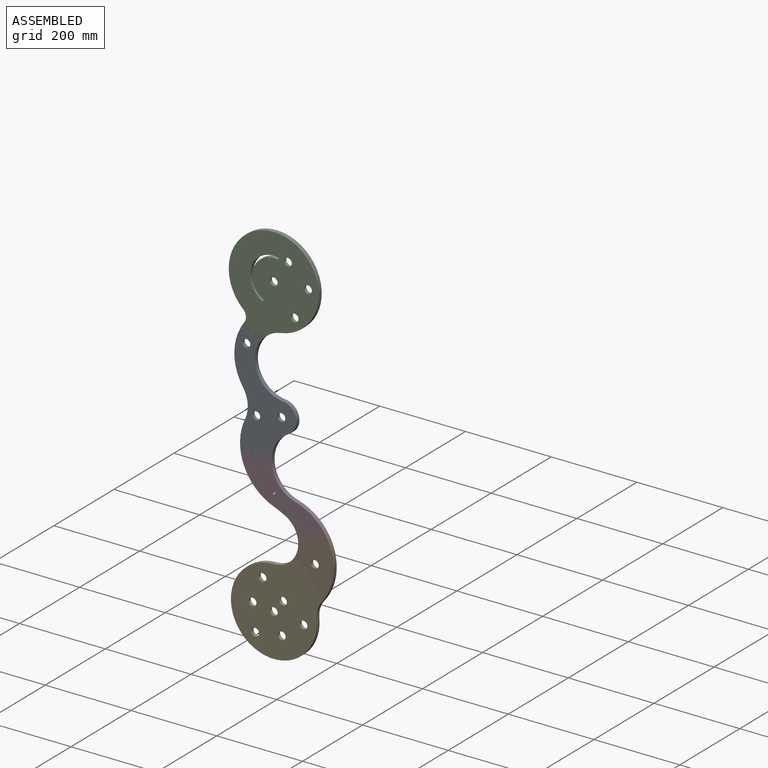
[diagram: assembled view]
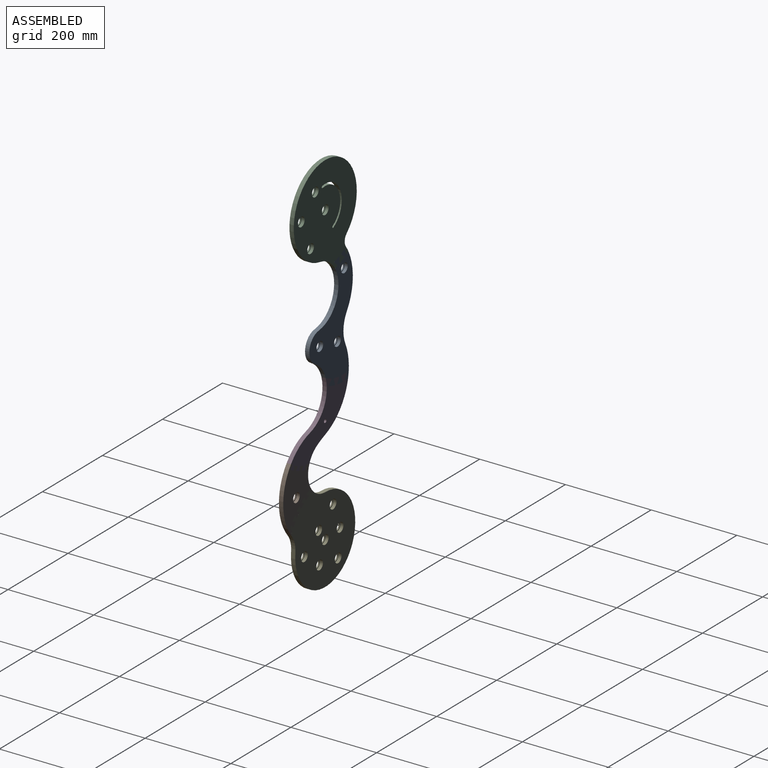
[diagram: assembled view, second angle]
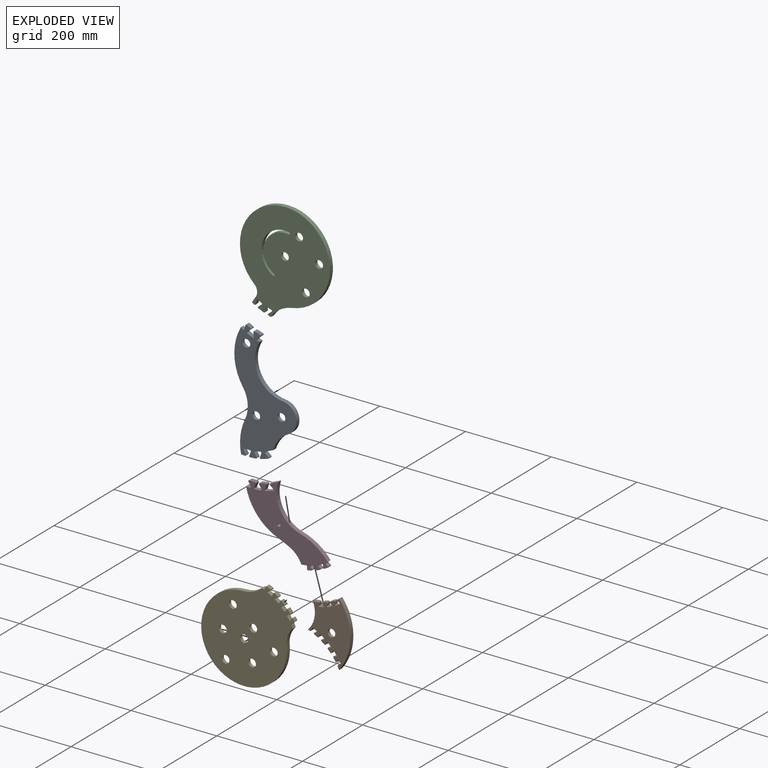
[diagram: exploded view]
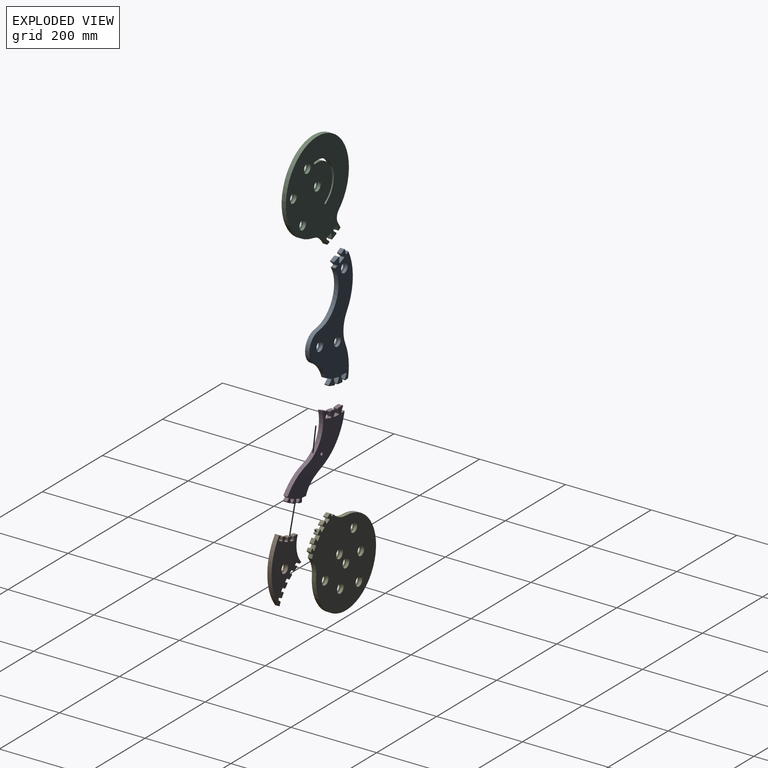
[diagram: exploded view, second angle]
ASSEMBLY  parts=5 mates=4
PART A: 55 faces, bbox 145x10x277.5 mm
  f0: plane 277.54x145mm, normal (0,-1,0), area 18295.8mm2, adj f2,f3,f4,f5,f6,f7,f8,f9
  f1: plane 277.54x145mm, normal (0,1,0), area 17918.8mm2, adj f2,f3,f4,f8,f9,f10,f11,f13
  f2: cylinder r=122.06mm len=76.1mm, axis (0,1,0), area 779.7mm2, adj f0,f1,f9,f53
  f3: cylinder r=75mm len=43.51mm, axis (0,1,0), area 579.9mm2, adj f0,f1,f10,f54
  f4: cylinder r=120mm len=124.49mm, axis (0,1,0), area 1310mm2, adj f0,f1,f9,f17
  f5: cylinder r=9mm len=18mm, axis (0,1,0), area 169.6mm2, adj f0,f12
  f6: cylinder r=9mm len=18mm, axis (0,1,0), area 169.6mm2, adj f0,f14
  f7: cylinder r=9mm len=18mm, axis (0,1,0), area 169.6mm2, adj f0,f16
  f8: cylinder r=72mm len=110.51mm, axis (0,1,0), area 1473.8mm2, adj f0,f1,f10,f19
  f9: cylinder r=68.21mm len=66.76mm, axis (0,1,0), area 699.7mm2, adj f0,f1,f2,f4
  f10: cylinder r=34.99mm len=65.69mm, axis (0,1,0), area 894.6mm2, adj f0,f1,f3,f8
  f11: cylinder r=11mm len=22mm, axis (0,1,0), area 483.8mm2, adj f1,f12
  f12: plane 22x22mm, normal (0,1,0), area 125.7mm2, adj f5,f11
  f13: cylinder r=11mm len=22mm, axis (0,1,0), area 483.8mm2, adj f1,f14
  f14: plane 22x22mm, normal (0,1,0), area 125.7mm2, adj f6,f13
  f15: cylinder r=11mm len=22mm, axis (0,1,0), area 483.8mm2, adj f1,f16
  f16: plane 22x22mm, normal (0,1,0), area 125.7mm2, adj f7,f15
  f17: plane 10x5.31mm, normal (0.54,0,0.84), area 63.1mm2, adj f0,f1,f4,f20
  f18: cylinder r=2mm len=10mm, axis (0,-1,0), area 43.4mm2, adj f0,f1,f19,f33
  f19: plane 10x5.63mm, normal (0.25,0,0.97), area 58.1mm2, adj f0,f1,f8,f18
  f20: cylinder r=2mm len=10mm, axis (0,-1,0), area 37.6mm2, adj f0,f1,f17,f21
  f21: plane 10x9.96mm, normal (-0.97,0,0.26), area 103.2mm2, adj f0,f1,f20,f22
  f22: cylinder r=2mm len=10mm, axis (0,-1,0), area 35.9mm2, adj f0,f1,f21,f23
  f23: plane 10x8.34mm, normal (0.47,0,0.88), area 94.6mm2, adj f0,f1,f22,f24
  f24: cylinder r=2mm len=10mm, axis (0,-1,0), area 39.5mm2, adj f0,f1,f23,f25
  f25: plane 10x7.97mm, normal (0.63,0,-0.78), area 102.2mm2, adj f0,f1,f24,f26
  f26: cylinder r=2mm len=10mm, axis (0,-1,0), area 41.1mm2, adj f0,f1,f25,f27
  f27: plane 12.34x10mm, normal (0.4,0,0.92), area 134.6mm2, adj f0,f1,f26,f28
  f28: cylinder r=2mm len=10mm, axis (0,-1,0), area 40.6mm2, adj f0,f1,f27,f29
  f29: plane 10.26x10mm, normal (-1,0,-0.05), area 102.7mm2, adj f0,f1,f28,f30
  f30: cylinder r=2mm len=10mm, axis (0,-1,0), area 38.6mm2, adj f0,f1,f29,f31
  f31: plane 12.93x10mm, normal (0.3,0,0.95), area 135.8mm2, adj f0,f1,f30,f32
  f32: cylinder r=2mm len=10mm, axis (0,-1,0), area 42.2mm2, adj f0,f1,f31,f33
  f33: plane 10x7.99mm, normal (0.66,0,-0.75), area 106.3mm2, adj f0,f1,f18,f32
  f34: cylinder r=2mm len=10mm, axis (0,-1,0), area 40.9mm2, adj f0,f1,f35,f54
  f35: plane 10x7.99mm, normal (0.64,0,0.77), area 104.3mm2, adj f0,f1,f34,f36
  f36: cylinder r=2mm len=10mm, axis (0,-1,0), area 43.3mm2, adj f0,f1,f35,f37
  f37: plane 16.7x10mm, normal (0.27,0,-0.96), area 173.7mm2, adj f0,f1,f36,f38
  f38: cylinder r=2mm len=10mm, axis (0,-1,0), area 43.7mm2, adj f0,f1,f37,f39
  f39: plane 10x9.82mm, normal (-0.94,0,0.33), area 104.1mm2, adj f0,f1,f38,f40
  f40: cylinder r=2mm len=10mm, axis (0,-1,0), area 41.8mm2, adj f0,f1,f39,f41
  f41: plane 13.37x10mm, normal (0.18,0,-0.98), area 135.9mm2, adj f0,f1,f40,f42
  f42: cylinder r=2mm len=10mm, axis (0,-1,0), area 39.1mm2, adj f0,f1,f41,f43
  f43: plane 10x8.68mm, normal (0.84,0,0.54), area 102.9mm2, adj f0,f1,f42,f44
  f44: cylinder r=2mm len=10mm, axis (0,-1,0), area 41.1mm2, adj f0,f1,f43,f45
  f45: plane 13.42x10mm, normal (0.08,0,-1), area 134.6mm2, adj f0,f1,f44,f46
  f46: cylinder r=2mm len=10mm, axis (0,-1,0), area 40.6mm2, adj f0,f1,f45,f47
  f47: plane 10x9.54mm, normal (-0.93,0,0.37), area 102.7mm2, adj f0,f1,f46,f48
  f48: cylinder r=2mm len=10mm, axis (0,-1,0), area 38.6mm2, adj f0,f1,f47,f49
  f49: plane 13.58x10mm, normal (-0.02,0,-1), area 135.8mm2, adj f0,f1,f48,f50
  f50: cylinder r=2mm len=10mm, axis (0,-1,0), area 42.2mm2, adj f0,f1,f49,f51
  f51: plane 10x9.15mm, normal (0.87,0,0.5), area 105.5mm2, adj f0,f1,f50,f52
  f52: cylinder r=2mm len=10mm, axis (0,-1,0), area 43.8mm2, adj f0,f1,f51,f53
  f53: plane 10x8.86mm, normal (-0.1,0,-1), area 89.1mm2, adj f0,f1,f2,f52
  f54: plane 18.38x10mm, normal (0.39,0,-0.92), area 199.6mm2, adj f0,f1,f3,f34
PART B: 73 faces, bbox 98.9x10x150.5 mm
  f0: cylinder r=58.03mm len=62.65mm, axis (0,1,0), area 674.6mm2, adj f2,f3,f47,f72
  f1: cylinder r=121.52mm len=150.51mm, axis (0,1,0), area 1623.1mm2, adj f2,f3,f8,f71
  f2: plane 150.51x98.93mm, normal (0,-1,0), area 7670.9mm2, adj f0,f1,f4,f7,f8,f9,f10,f11
  f3: plane 150.51x98.93mm, normal (0,1,0), area 7545.2mm2, adj f0,f1,f5,f7,f8,f9,f10,f11
  f4: cylinder r=9mm len=18mm, axis (0,1,0), area 169.6mm2, adj f2,f6
  f5: cylinder r=11mm len=22mm, axis (0,1,0), area 483.8mm2, adj f3,f6
  f6: plane 22x22mm, normal (0,1,0), area 125.7mm2, adj f4,f5
  f7: cylinder r=2mm len=10mm, axis (0,-1,0), area 29.7mm2, adj f2,f3,f46,f47
  f8: plane 10x6.99mm, normal (-0.9,0,-0.43), area 77.4mm2, adj f1,f2,f3,f9
  f9: cylinder r=2mm len=10mm, axis (0,-1,0), area 27.1mm2, adj f2,f3,f8,f10
  f10: plane 10x5.31mm, normal (-0.61,0,0.79), area 67.1mm2, adj f2,f3,f9,f11
  f11: cylinder r=2mm len=10mm, axis (0,-1,0), area 29.3mm2, adj f2,f3,f10,f12
  f12: plane 10x3.94mm, normal (-0.85,0,-0.52), area 46.3mm2, adj f2,f3,f11,f13
  f13: cylinder r=2mm len=10mm, axis (0,-1,0), area 42.4mm2, adj f2,f3,f12,f14
  f14: plane 10x4.18mm, normal (0.89,0,-0.45), area 46.9mm2, adj f2,f3,f13,f15
  f15: cylinder r=2mm len=10mm, axis (0,-1,0), area 41.4mm2, adj f2,f3,f14,f16
  f16: plane 10x7.07mm, normal (-0.82,0,-0.57), area 85.8mm2, adj f2,f3,f15,f17
  f17: cylinder r=2mm len=10mm, axis (0,-1,0), area 39.6mm2, adj f2,f3,f16,f18
  f18: plane 10x4.65mm, normal (-0.19,0,0.98), area 47.3mm2, adj f2,f3,f17,f19
  f19: cylinder r=2mm len=10mm, axis (0,-1,0), area 41.2mm2, adj f2,f3,f18,f20
  f20: plane 10x6.58mm, normal (-0.78,0,-0.63), area 84.7mm2, adj f2,f3,f19,f21
  f21: cylinder r=2mm len=10mm, axis (0,-1,0), area 40.5mm2, adj f2,f3,f20,f22
  f22: plane 10x4.35mm, normal (0.91,0,-0.42), area 48mm2, adj f2,f3,f21,f23
  f23: cylinder r=2mm len=10mm, axis (0,-1,0), area 38.8mm2, adj f2,f3,f22,f24
  f24: plane 10x6.2mm, normal (-0.72,0,-0.69), area 85.7mm2, adj f2,f3,f23,f25
  f25: cylinder r=2mm len=10mm, axis (0,-1,0), area 42.1mm2, adj f2,f3,f24,f26
  f26: plane 10x4.45mm, normal (-0.23,0,0.97), area 45.7mm2, adj f2,f3,f25,f27
  f27: cylinder r=2mm len=10mm, axis (0,-1,0), area 43.4mm2, adj f2,f3,f26,f28
  f28: plane 10x6.22mm, normal (-0.68,0,-0.74), area 84.3mm2, adj f2,f3,f27,f29
  f29: cylinder r=2mm len=10mm, axis (0,-1,0), area 37.9mm2, adj f2,f3,f28,f30
  f30: plane 10x4.66mm, normal (0.91,0,-0.41), area 51mm2, adj f2,f3,f29,f31
  f31: cylinder r=2mm len=10mm, axis (0,-1,0), area 36mm2, adj f2,f3,f30,f32
  f32: plane 10x6.77mm, normal (-0.6,0,-0.8), area 84.9mm2, adj f2,f3,f31,f33
  f33: cylinder r=2mm len=10mm, axis (0,-1,0), area 44.2mm2, adj f2,f3,f32,f34
  f34: plane 10x4.32mm, normal (-0.28,0,0.96), area 44.9mm2, adj f2,f3,f33,f35
  f35: cylinder r=2mm len=10mm, axis (0,-1,0), area 45.3mm2, adj f2,f3,f34,f36
  f36: plane 10x6.9mm, normal (-0.56,0,-0.83), area 83.2mm2, adj f2,f3,f35,f37
  f37: cylinder r=2mm len=10mm, axis (0,-1,0), area 35mm2, adj f2,f3,f36,f38
  f38: plane 10x5.07mm, normal (0.92,0,-0.4), area 55.3mm2, adj f2,f3,f37,f39
  f39: cylinder r=2mm len=10mm, axis (0,-1,0), area 32.9mm2, adj f2,f3,f38,f40
  f40: plane 10x7.36mm, normal (-0.47,0,-0.88), area 83.4mm2, adj f2,f3,f39,f41
  f41: cylinder r=2mm len=10mm, axis (0,-1,0), area 46.1mm2, adj f2,f3,f40,f42
  f42: plane 10x4.22mm, normal (-0.34,0,0.94), area 44.9mm2, adj f2,f3,f41,f43
  f43: cylinder r=2mm len=10mm, axis (0,-1,0), area 47mm2, adj f2,f3,f42,f44
  f44: plane 10x7.36mm, normal (-0.43,0,-0.9), area 81.5mm2, adj f2,f3,f43,f45
  f45: cylinder r=2mm len=10mm, axis (0,-1,0), area 32.1mm2, adj f2,f3,f44,f46
  f46: plane 10x5.59mm, normal (0.92,0,-0.4), area 60.9mm2, adj f2,f3,f7,f45
  f47: plane 10x4.54mm, normal (-0.32,0,-0.95), area 48mm2, adj f0,f2,f3,f7
  f48: cylinder r=2mm len=10mm, axis (0,-1,0), area 34mm2, adj f2,f3,f49,f72
  f49: plane 10x5.36mm, normal (1,0,-0.01), area 53.6mm2, adj f2,f3,f48,f50
  f50: cylinder r=2mm len=10mm, axis (0,-1,0), area 36.1mm2, adj f2,f3,f49,f51
  f51: plane 10x8.16mm, normal (-0.22,0,0.98), area 83.7mm2, adj f2,f3,f50,f52
  f52: cylinder r=2mm len=10mm, axis (0,-1,0), area 44.7mm2, adj f2,f3,f51,f53
  f53: plane 10x3.5mm, normal (-0.63,0,-0.77), area 45.1mm2, adj f2,f3,f52,f54
  f54: cylinder r=2mm len=10mm, axis (0,-1,0), area 43.5mm2, adj f2,f3,f53,f55
  f55: plane 10x8.19mm, normal (-0.28,0,0.96), area 85.3mm2, adj f2,f3,f54,f56
  f56: cylinder r=2mm len=10mm, axis (0,-1,0), area 37mm2, adj f2,f3,f55,f57
  f57: plane 10x4.98mm, normal (1,0,0), area 49.8mm2, adj f2,f3,f56,f58
  f58: cylinder r=2mm len=10mm, axis (0,-1,0), area 38.8mm2, adj f2,f3,f57,f59
  f59: plane 10x7.88mm, normal (-0.36,0,0.93), area 84.5mm2, adj f2,f3,f58,f60
  f60: cylinder r=2mm len=10mm, axis (0,-1,0), area 42.7mm2, adj f2,f3,f59,f61
  f61: plane 10x3.71mm, normal (-0.6,0,-0.8), area 46.2mm2, adj f2,f3,f60,f62
  f62: cylinder r=2mm len=10mm, axis (0,-1,0), area 41.3mm2, adj f2,f3,f61,f63
  f63: plane 10x7.76mm, normal (-0.43,0,0.9), area 85.8mm2, adj f2,f3,f62,f64
  f64: cylinder r=2mm len=10mm, axis (0,-1,0), area 39.8mm2, adj f2,f3,f63,f65
  f65: plane 10x4.72mm, normal (1,0,0.02), area 47.2mm2, adj f2,f3,f64,f66
  f66: cylinder r=2mm len=10mm, axis (0,-1,0), area 41.3mm2, adj f2,f3,f65,f67
  f67: plane 10x7.36mm, normal (-0.5,0,0.87), area 84.7mm2, adj f2,f3,f66,f68
  f68: cylinder r=2mm len=10mm, axis (0,-1,0), area 40.3mm2, adj f2,f3,f67,f69
  f69: plane 10x3.96mm, normal (-0.57,0,-0.82), area 48.1mm2, adj f2,f3,f68,f70
  f70: cylinder r=2mm len=10mm, axis (0,-1,0), area 38.7mm2, adj f2,f3,f69,f71
  f71: plane 10x3.95mm, normal (-0.57,0,0.82), area 47.9mm2, adj f1,f2,f3,f70
  f72: plane 10.97x10mm, normal (-0.12,0,0.99), area 110.5mm2, adj f0,f2,f3,f48
PART C: 39 faces, bbox 210x10x240.9 mm
  f0: cylinder r=72mm len=49.25mm, axis (0,1,0), area 606.6mm2, adj f1,f2,f7,f23
  f1: plane 240.95x210mm, normal (0,-1,0), area 34473.9mm2, adj f0,f3,f4,f5,f6,f7,f8,f9
  f2: plane 240.95x210mm, normal (0,1,0), area 33971.2mm2, adj f0,f7,f8,f9,f10,f11,f12,f13
  f3: cylinder r=9mm len=18mm, axis (0,1,0), area 169.6mm2, adj f1,f15
  f4: cylinder r=9mm len=18mm, axis (0,1,0), area 169.6mm2, adj f1,f17
  f5: cylinder r=9mm len=18mm, axis (0,1,0), area 169.6mm2, adj f1,f19
  f6: cylinder r=9mm len=18mm, axis (0,1,0), area 169.6mm2, adj f1,f21
  f7: cylinder r=105mm len=210mm, axis (0,1,0), area 5647.7mm2, adj f0,f1,f2,f8
  f8: cylinder r=20mm len=26.54mm, axis (0,1,0), area 291.9mm2, adj f1,f2,f7,f9
  f9: cylinder r=120mm len=13mm, axis (0,1,0), area 154.5mm2, adj f1,f2,f8,f22
  f10: cylinder r=2.5mm len=10mm, axis (0,1,0), area 78.5mm2, adj f1,f2,f11,f13
  f11: cylinder r=50mm len=93.3mm, axis (0,1,0), area 1396.3mm2, adj f1,f2,f10,f12
  f12: cylinder r=2.5mm len=10mm, axis (0,1,0), area 78.5mm2, adj f1,f2,f11,f13
  f13: cylinder r=55mm len=102.63mm, axis (0,1,0), area 1535.9mm2, adj f1,f2,f10,f12
  f14: cylinder r=11mm len=22mm, axis (0,1,0), area 483.8mm2, adj f2,f15
  f15: plane 22x22mm, normal (0,1,0), area 125.7mm2, adj f3,f14
  f16: cylinder r=11mm len=22mm, axis (0,1,0), area 483.8mm2, adj f2,f17
  f17: plane 22x22mm, normal (0,1,0), area 125.7mm2, adj f4,f16
  f18: cylinder r=11mm len=22mm, axis (0,1,0), area 483.8mm2, adj f2,f19
  f19: plane 22x22mm, normal (0,1,0), area 125.7mm2, adj f5,f18
  f20: cylinder r=11mm len=22mm, axis (0,1,0), area 483.8mm2, adj f2,f21
  f21: plane 22x22mm, normal (0,1,0), area 125.7mm2, adj f6,f20
  f22: plane 10x5.31mm, normal (-0.54,0,-0.84), area 63.2mm2, adj f1,f2,f9,f38
  f23: plane 10x5.62mm, normal (-0.25,0,-0.97), area 58mm2, adj f0,f1,f2,f24
  f24: cylinder r=2mm len=10mm, axis (0,-1,0), area 43.7mm2, adj f1,f2,f23,f25
  f25: plane 10x8.15mm, normal (-0.65,0,0.76), area 106.9mm2, adj f1,f2,f24,f26
  f26: cylinder r=2mm len=10mm, axis (0,-1,0), area 42.6mm2, adj f1,f2,f25,f27
  f27: plane 12.93x10mm, normal (-0.3,0,-0.95), area 135.7mm2, adj f1,f2,f26,f28
  f28: cylinder r=2mm len=10mm, axis (0,-1,0), area 38.2mm2, adj f1,f2,f27,f29
  f29: plane 10.26x10mm, normal (1,0,0.03), area 102.6mm2, adj f1,f2,f28,f30
  f30: cylinder r=2mm len=10mm, axis (0,-1,0), area 40.3mm2, adj f1,f2,f29,f31
  f31: plane 12.33x10mm, normal (-0.4,0,-0.92), area 134.6mm2, adj f1,f2,f30,f32
  f32: cylinder r=2mm len=10mm, axis (0,-1,0), area 41.5mm2, adj f1,f2,f31,f33
  f33: plane 10x8.11mm, normal (-0.61,0,0.79), area 102.4mm2, adj f1,f2,f32,f34
  f34: cylinder r=2mm len=10mm, axis (0,-1,0), area 40mm2, adj f1,f2,f33,f35
  f35: plane 10x8.35mm, normal (-0.47,0,-0.88), area 94.5mm2, adj f1,f2,f34,f36
  f36: cylinder r=2mm len=10mm, axis (0,-1,0), area 35.4mm2, adj f1,f2,f35,f37
  f37: plane 10x9.92mm, normal (0.96,0,-0.28), area 103.5mm2, adj f1,f2,f36,f38
  f38: cylinder r=2mm len=10mm, axis (0,-1,0), area 37.1mm2, adj f1,f2,f22,f37
PART D: 54 faces, bbox 191.2x10x167.2 mm
  f0: cylinder r=58.03mm len=28.49mm, axis (0,1,0), area 391.4mm2, adj f2,f3,f5,f53
  f1: cylinder r=121.52mm len=63.86mm, axis (0,1,0), area 779.7mm2, adj f2,f3,f6,f29
  f2: plane 191.21x167.2mm, normal (0,-1,0), area 10730.8mm2, adj f0,f1,f4,f5,f6,f7,f8,f9
  f3: plane 191.21x167.2mm, normal (0,1,0), area 10730.8mm2, adj f0,f1,f4,f5,f6,f7,f8,f9
  f4: cylinder r=122.06mm len=89.93mm, axis (0,1,0), area 1230.5mm2, adj f2,f3,f5,f8
  f5: cylinder r=218.97mm len=26.87mm, axis (0,1,0), area 296mm2, adj f0,f2,f3,f4
  f6: cylinder r=75mm len=95mm, axis (0,1,0), area 1209.1mm2, adj f1,f2,f3,f28
  f7: cylinder r=4mm len=10mm, axis (0,1,0), area 251.3mm2, adj f2,f3
  f8: plane 10x8.86mm, normal (0.1,0,1), area 89.1mm2, adj f2,f3,f4,f9
  f9: cylinder r=2mm len=10mm, axis (0,-1,0), area 43.8mm2, adj f2,f3,f8,f10
  f10: plane 10x9.15mm, normal (-0.87,0,-0.5), area 105.5mm2, adj f2,f3,f9,f11
  f11: cylinder r=2mm len=10mm, axis (0,-1,0), area 42.2mm2, adj f2,f3,f10,f12
  f12: plane 13.58x10mm, normal (0.02,0,1), area 135.8mm2, adj f2,f3,f11,f13
  f13: cylinder r=2mm len=10mm, axis (0,-1,0), area 38.6mm2, adj f2,f3,f12,f14
  f14: plane 10x9.54mm, normal (0.93,0,-0.37), area 102.7mm2, adj f2,f3,f13,f15
  f15: cylinder r=2mm len=10mm, axis (0,-1,0), area 40.6mm2, adj f2,f3,f14,f16
  f16: plane 13.42x10mm, normal (-0.08,0,1), area 134.6mm2, adj f2,f3,f15,f17
  f17: cylinder r=2mm len=10mm, axis (0,-1,0), area 41.1mm2, adj f2,f3,f16,f18
  f18: plane 10x8.68mm, normal (-0.84,0,-0.54), area 102.9mm2, adj f2,f3,f17,f19
  f19: cylinder r=2mm len=10mm, axis (0,-1,0), area 39.1mm2, adj f2,f3,f18,f20
  f20: plane 13.37x10mm, normal (-0.18,0,0.98), area 135.9mm2, adj f2,f3,f19,f21
  f21: cylinder r=2mm len=10mm, axis (0,-1,0), area 41.8mm2, adj f2,f3,f20,f22
  f22: plane 10x9.82mm, normal (0.94,0,-0.33), area 104.1mm2, adj f2,f3,f21,f23
  f23: cylinder r=2mm len=10mm, axis (0,-1,0), area 43.7mm2, adj f2,f3,f22,f24
  f24: plane 16.7x10mm, normal (-0.27,0,0.96), area 173.7mm2, adj f2,f3,f23,f25
  f25: cylinder r=2mm len=10mm, axis (0,-1,0), area 43.3mm2, adj f2,f3,f24,f26
  f26: plane 10x7.99mm, normal (-0.64,0,-0.77), area 104.3mm2, adj f2,f3,f25,f27
  f27: cylinder r=2mm len=10mm, axis (0,-1,0), area 40.9mm2, adj f2,f3,f26,f28
  f28: plane 18.38x10mm, normal (-0.39,0,0.92), area 199.6mm2, adj f2,f3,f6,f27
  f29: plane 10x3.95mm, normal (0.57,0,-0.82), area 47.9mm2, adj f1,f2,f3,f30
  f30: cylinder r=2mm len=10mm, axis (0,-1,0), area 38.7mm2, adj f2,f3,f29,f31
  f31: plane 10x3.96mm, normal (0.57,0,0.82), area 48.1mm2, adj f2,f3,f30,f32
  f32: cylinder r=2mm len=10mm, axis (0,-1,0), area 40.3mm2, adj f2,f3,f31,f33
  f33: plane 10x7.36mm, normal (0.5,0,-0.87), area 84.7mm2, adj f2,f3,f32,f34
  f34: cylinder r=2mm len=10mm, axis (0,-1,0), area 41.3mm2, adj f2,f3,f33,f35
  f35: plane 10x4.72mm, normal (-1,0,-0.02), area 47.2mm2, adj f2,f3,f34,f36
  f36: cylinder r=2mm len=10mm, axis (0,-1,0), area 39.8mm2, adj f2,f3,f35,f37
  f37: plane 10x7.76mm, normal (0.43,0,-0.9), area 85.8mm2, adj f2,f3,f36,f38
  f38: cylinder r=2mm len=10mm, axis (0,-1,0), area 41.3mm2, adj f2,f3,f37,f39
  f39: plane 10x3.71mm, normal (0.6,0,0.8), area 46.2mm2, adj f2,f3,f38,f40
  f40: cylinder r=2mm len=10mm, axis (0,-1,0), area 42.7mm2, adj f2,f3,f39,f41
  f41: plane 10x7.88mm, normal (0.36,0,-0.93), area 84.5mm2, adj f2,f3,f40,f42
  f42: cylinder r=2mm len=10mm, axis (0,-1,0), area 38.8mm2, adj f2,f3,f41,f43
  f43: plane 10x4.98mm, normal (-1,0,0), area 49.8mm2, adj f2,f3,f42,f44
  f44: cylinder r=2mm len=10mm, axis (0,-1,0), area 37mm2, adj f2,f3,f43,f45
  f45: plane 10x8.19mm, normal (0.28,0,-0.96), area 85.3mm2, adj f2,f3,f44,f46
  f46: cylinder r=2mm len=10mm, axis (0,-1,0), area 43.5mm2, adj f2,f3,f45,f47
  f47: plane 10x3.5mm, normal (0.63,0,0.77), area 45.1mm2, adj f2,f3,f46,f48
  f48: cylinder r=2mm len=10mm, axis (0,-1,0), area 44.7mm2, adj f2,f3,f47,f49
  f49: plane 10x8.16mm, normal (0.22,0,-0.98), area 83.7mm2, adj f2,f3,f48,f50
  f50: cylinder r=2mm len=10mm, axis (0,-1,0), area 36.1mm2, adj f2,f3,f49,f51
  f51: plane 10x5.36mm, normal (-1,0,0.01), area 53.6mm2, adj f2,f3,f50,f52
  f52: cylinder r=2mm len=10mm, axis (0,-1,0), area 34mm2, adj f2,f3,f51,f53
  f53: plane 10.97x10mm, normal (0.12,0,-0.99), area 110.5mm2, adj f0,f2,f3,f52
PART E: 68 faces, bbox 216.9x10x224.2 mm
  f0: cylinder r=9mm len=18mm, axis (0,1,0), area 169.6mm2, adj f11,f26
  f1: cylinder r=9mm len=18mm, axis (0,1,0), area 169.6mm2, adj f11,f20
  f2: cylinder r=9mm len=18mm, axis (0,1,0), area 169.6mm2, adj f11,f18
  f3: cylinder r=9mm len=18mm, axis (0,1,0), area 169.6mm2, adj f11,f16
  f4: cylinder r=9mm len=18mm, axis (0,1,0), area 169.6mm2, adj f11,f14
  f5: cylinder r=9mm len=18mm, axis (0,1,0), area 169.6mm2, adj f11,f22
  f6: cylinder r=9mm len=18mm, axis (0,1,0), area 169.6mm2, adj f11,f24
  f7: cylinder r=58.03mm len=41.55mm, axis (0,1,0), area 464.5mm2, adj f8,f11,f12,f67
  f8: cylinder r=100mm len=200mm, axis (0,1,0), area 4805.8mm2, adj f7,f9,f11,f12
  f9: cylinder r=53.56mm len=39.62mm, axis (0,1,0), area 425.6mm2, adj f8,f10,f11,f12
  f10: cylinder r=121.52mm len=10mm, axis (0,1,0), area 29.3mm2, adj f9,f11,f12,f66
  f11: plane 224.19x216.89mm, normal (0,-1,0), area 32833.7mm2, adj f0,f1,f2,f3,f4,f5,f6,f7
  f12: plane 224.19x216.89mm, normal (0,1,0), area 31954.1mm2, adj f7,f8,f9,f10,f13,f15,f17,f19
  f13: cylinder r=11mm len=22mm, axis (0,1,0), area 483.8mm2, adj f12,f14
  f14: plane 22x22mm, normal (0,1,0), area 125.7mm2, adj f4,f13
  f15: cylinder r=11mm len=22mm, axis (0,1,0), area 483.8mm2, adj f12,f16
  f16: plane 22x22mm, normal (0,1,0), area 125.7mm2, adj f3,f15
  f17: cylinder r=11mm len=22mm, axis (0,1,0), area 483.8mm2, adj f12,f18
  f18: plane 22x22mm, normal (0,1,0), area 125.7mm2, adj f2,f17
  f19: cylinder r=11mm len=22mm, axis (0,1,0), area 483.8mm2, adj f12,f20
  f20: plane 22x22mm, normal (0,1,0), area 125.7mm2, adj f1,f19
  f21: cylinder r=11mm len=22mm, axis (0,1,0), area 483.8mm2, adj f12,f22
  f22: plane 22x22mm, normal (0,1,0), area 125.7mm2, adj f5,f21
  f23: cylinder r=11mm len=22mm, axis (0,1,0), area 483.8mm2, adj f12,f24
  f24: plane 22x22mm, normal (0,1,0), area 125.7mm2, adj f6,f23
  f25: cylinder r=11mm len=22mm, axis (0,1,0), area 483.8mm2, adj f12,f26
  f26: plane 22x22mm, normal (0,1,0), area 125.7mm2, adj f0,f25
  f27: cylinder r=2mm len=10mm, axis (0,-1,0), area 29.7mm2, adj f11,f12,f28,f67
  f28: plane 10x5.59mm, normal (-0.92,0,0.4), area 60.9mm2, adj f11,f12,f27,f29
  f29: cylinder r=2mm len=10mm, axis (0,-1,0), area 32.1mm2, adj f11,f12,f28,f30
  f30: plane 10x7.36mm, normal (0.43,0,0.9), area 81.5mm2, adj f11,f12,f29,f31
  f31: cylinder r=2mm len=10mm, axis (0,-1,0), area 47mm2, adj f11,f12,f30,f32
  f32: plane 10x4.22mm, normal (0.34,0,-0.94), area 44.9mm2, adj f11,f12,f31,f33
  f33: cylinder r=2mm len=10mm, axis (0,-1,0), area 46.1mm2, adj f11,f12,f32,f34
  f34: plane 10x7.36mm, normal (0.47,0,0.88), area 83.4mm2, adj f11,f12,f33,f35
  f35: cylinder r=2mm len=10mm, axis (0,-1,0), area 32.9mm2, adj f11,f12,f34,f36
  f36: plane 10x5.07mm, normal (-0.92,0,0.4), area 55.3mm2, adj f11,f12,f35,f37
  f37: cylinder r=2mm len=10mm, axis (0,-1,0), area 35mm2, adj f11,f12,f36,f38
  f38: plane 10x6.9mm, normal (0.56,0,0.83), area 83.2mm2, adj f11,f12,f37,f39
  f39: cylinder r=2mm len=10mm, axis (0,-1,0), area 45.3mm2, adj f11,f12,f38,f40
  f40: plane 10x4.32mm, normal (0.28,0,-0.96), area 44.9mm2, adj f11,f12,f39,f41
  f41: cylinder r=2mm len=10mm, axis (0,-1,0), area 44.2mm2, adj f11,f12,f40,f42
  f42: plane 10x6.77mm, normal (0.6,0,0.8), area 84.9mm2, adj f11,f12,f41,f43
  f43: cylinder r=2mm len=10mm, axis (0,-1,0), area 36mm2, adj f11,f12,f42,f44
  f44: plane 10x4.66mm, normal (-0.91,0,0.41), area 51mm2, adj f11,f12,f43,f45
  f45: cylinder r=2mm len=10mm, axis (0,-1,0), area 37.9mm2, adj f11,f12,f44,f46
  f46: plane 10x6.22mm, normal (0.68,0,0.74), area 84.3mm2, adj f11,f12,f45,f47
  f47: cylinder r=2mm len=10mm, axis (0,-1,0), area 43.4mm2, adj f11,f12,f46,f48
  f48: plane 10x4.45mm, normal (0.23,0,-0.97), area 45.7mm2, adj f11,f12,f47,f49
  f49: cylinder r=2mm len=10mm, axis (0,-1,0), area 42.1mm2, adj f11,f12,f48,f50
  f50: plane 10x6.2mm, normal (0.72,0,0.69), area 85.7mm2, adj f11,f12,f49,f51
  f51: cylinder r=2mm len=10mm, axis (0,-1,0), area 38.8mm2, adj f11,f12,f50,f52
  f52: plane 10x4.35mm, normal (-0.91,0,0.42), area 48mm2, adj f11,f12,f51,f53
  f53: cylinder r=2mm len=10mm, axis (0,-1,0), area 40.5mm2, adj f11,f12,f52,f54
  f54: plane 10x6.58mm, normal (0.78,0,0.63), area 84.7mm2, adj f11,f12,f53,f55
  f55: cylinder r=2mm len=10mm, axis (0,-1,0), area 41.2mm2, adj f11,f12,f54,f56
  f56: plane 10x4.65mm, normal (0.19,0,-0.98), area 47.3mm2, adj f11,f12,f55,f57
  f57: cylinder r=2mm len=10mm, axis (0,-1,0), area 39.6mm2, adj f11,f12,f56,f58
  f58: plane 10x7.07mm, normal (0.82,0,0.57), area 85.8mm2, adj f11,f12,f57,f59
  f59: cylinder r=2mm len=10mm, axis (0,-1,0), area 41.4mm2, adj f11,f12,f58,f60
  f60: plane 10x4.18mm, normal (-0.89,0,0.45), area 46.9mm2, adj f11,f12,f59,f61
  f61: cylinder r=2mm len=10mm, axis (0,-1,0), area 42.4mm2, adj f11,f12,f60,f62
  f62: plane 10x3.94mm, normal (0.85,0,0.52), area 46.3mm2, adj f11,f12,f61,f63
  f63: cylinder r=2mm len=10mm, axis (0,-1,0), area 29.3mm2, adj f11,f12,f62,f64
  f64: plane 10x5.31mm, normal (0.61,0,-0.79), area 67.1mm2, adj f11,f12,f63,f65
  f65: cylinder r=2mm len=10mm, axis (0,-1,0), area 27.1mm2, adj f11,f12,f64,f66
  f66: plane 10x6.99mm, normal (0.9,0,0.43), area 77.4mm2, adj f10,f11,f12,f65
  f67: plane 10x4.54mm, normal (0.32,0,0.95), area 48mm2, adj f7,f11,f12,f27
PLACE A at identity
PLACE B at identity
PLACE C rot(axis=(0,-1,0),0deg) t=(0.13,0,0.03)mm
PLACE D at identity
PLACE E at identity
MATE fastened B.f55 <-> D.f45  axis (-0.28,0,0.96) through (78.52,-5,-64.65)mm
MATE fastened A.f27 <-> C.f31  axis (0.4,0,0.92) through (-55.83,-5,317.32)mm
MATE fastened D.f20 <-> A.f41  axis (-0.18,0,0.98) through (-37.89,-5,77.38)mm
MATE fastened B.f28 <-> E.f46  axis (-0.68,0,-0.74) through (90.67,-5,-150.27)mm
